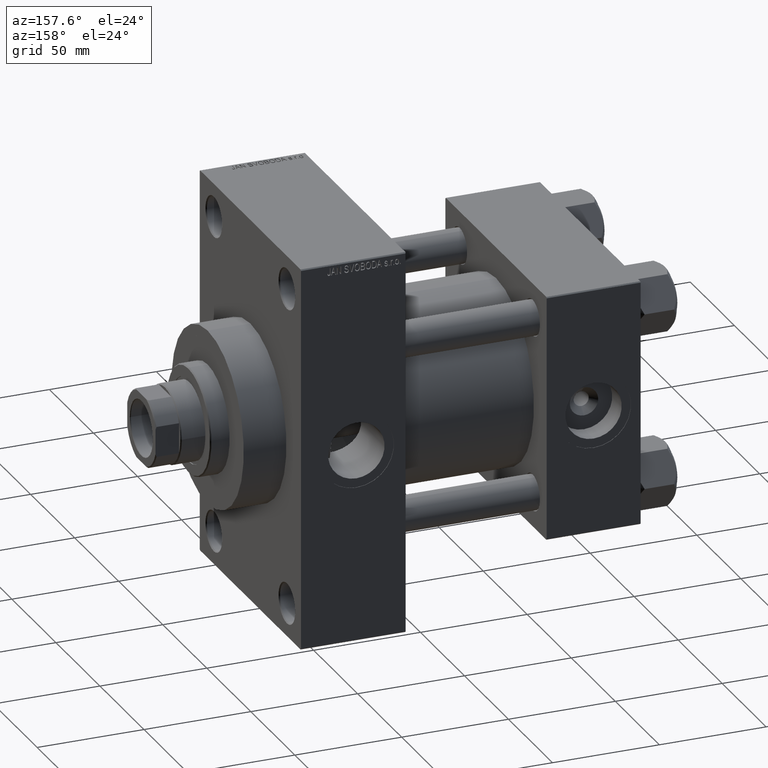
[diagram: clean part render]
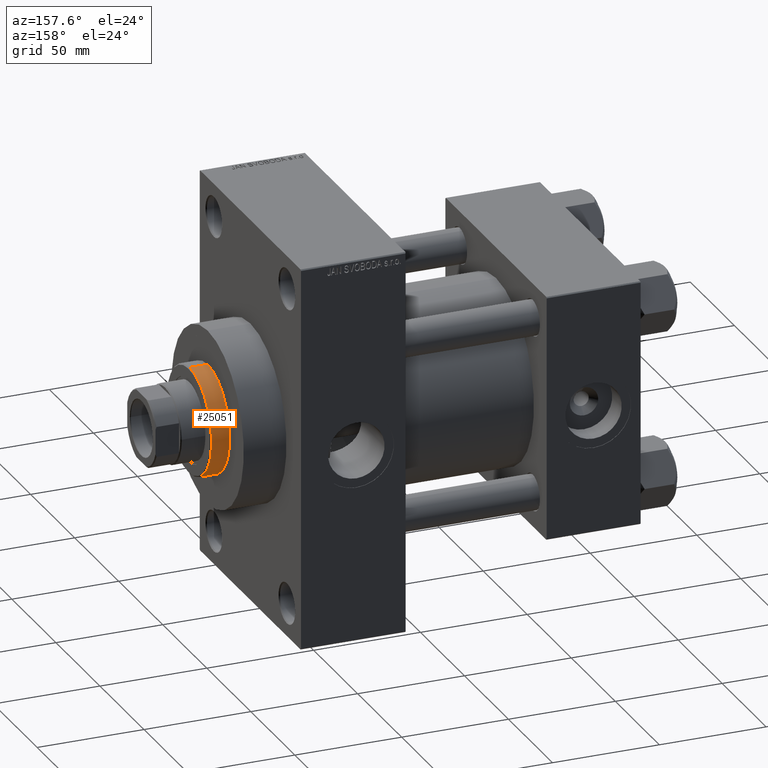
[diagram: same view with one face highlighted and labeled with its STEP entity id]
A machine part, auxiliary view. The second image highlights one B-rep face of the part: STEP entity #25051.
In plain terms, the highlighted cylindrical surface (partial cylindrical patch) has radius 25 mm, axis along (-1, 0, 0).
Its self-contained STEP definition (entity closure, byte-faithful):
#1794 = DIRECTION ( 'NONE',  ( 1.000000000000000000, 0.000000000000000000, 0.000000000000000000 ) ) ;
#3131 = ORIENTED_EDGE ( 'NONE', *, *, #28479, .T. ) ;
#3376 = VERTEX_POINT ( 'NONE', #43550 ) ;
#6030 = VERTEX_POINT ( 'NONE', #25152 ) ;
#8068 = CARTESIAN_POINT ( 'NONE',  ( 0.000000000000000000, 0.000000000000000000, 52.25999999999999801 ) ) ;
#10020 = EDGE_CURVE ( 'NONE', #48110, #3376, #16092, .T. ) ;
#10474 = CARTESIAN_POINT ( 'NONE',  ( 25.00000000000000000, 3.061616997868383043E-15, 43.25999999999999801 ) ) ;
#12567 = DIRECTION ( 'NONE',  ( -0.000000000000000000, -0.000000000000000000, -1.000000000000000000 ) ) ;
#13410 = CIRCLE ( 'NONE', #18220, 25.00000000000000000 ) ;
#16092 = LINE ( 'NONE', #40265, #37372 ) ;
#18220 = AXIS2_PLACEMENT_3D ( 'NONE', #36666, #48229, #44698 ) ;
#19400 = AXIS2_PLACEMENT_3D ( 'NONE', #8068, #34743, #31213 ) ;
#25051 = ADVANCED_FACE ( 'NONE', ( #46050 ), #42307, .T. ) ;
#25152 = CARTESIAN_POINT ( 'NONE',  ( 25.00000000000000000, 3.061616997868383043E-15, 51.75999999999996959 ) ) ;
#28406 = ORIENTED_EDGE ( 'NONE', *, *, #48237, .F. ) ;
#28479 = EDGE_CURVE ( 'NONE', #3376, #40626, #38034, .T. ) ;
#31213 = DIRECTION ( 'NONE',  ( -1.000000000000000000, 0.000000000000000000, 0.000000000000000000 ) ) ;
#32553 = LINE ( 'NONE', #40608, #44163 ) ;
#34743 = DIRECTION ( 'NONE',  ( -0.000000000000000000, -0.000000000000000000, -1.000000000000000000 ) ) ;
#34921 = ORIENTED_EDGE ( 'NONE', *, *, #39661, .T. ) ;
#36666 = CARTESIAN_POINT ( 'NONE',  ( 0.000000000000000000, 0.000000000000000000, 51.75999999999996959 ) ) ;
#37372 = VECTOR ( 'NONE', #12567, 1000.000000000000000 ) ;
#38034 = CIRCLE ( 'NONE', #48382, 25.00000000000000000 ) ;
#38105 = CARTESIAN_POINT ( 'NONE',  ( -25.00000000000000000, 0.000000000000000000, 51.75999999999996959 ) ) ;
#39661 = EDGE_CURVE ( 'NONE', #6030, #48110, #13410, .T. ) ;
#39677 = ORIENTED_EDGE ( 'NONE', *, *, #10020, .T. ) ;
#40265 = CARTESIAN_POINT ( 'NONE',  ( -25.00000000000000000, 0.000000000000000000, 52.25999999999999801 ) ) ;
#40608 = CARTESIAN_POINT ( 'NONE',  ( 25.00000000000000000, 3.061616997868383043E-15, 52.25999999999999801 ) ) ;
#40626 = VERTEX_POINT ( 'NONE', #10474 ) ;
#42307 = CYLINDRICAL_SURFACE ( 'NONE', #19400, 25.00000000000000000 ) ;
#43328 = DIRECTION ( 'NONE',  ( 0.000000000000000000, 0.000000000000000000, 1.000000000000000000 ) ) ;
#43550 = CARTESIAN_POINT ( 'NONE',  ( -25.00000000000000000, 0.000000000000000000, 43.25999999999999801 ) ) ;
#44163 = VECTOR ( 'NONE', #48644, 1000.000000000000000 ) ;
#44197 = EDGE_LOOP ( 'NONE', ( #28406, #34921, #39677, #3131 ) ) ;
#44698 = DIRECTION ( 'NONE',  ( 1.000000000000000000, 0.000000000000000000, 0.000000000000000000 ) ) ;
#46050 = FACE_OUTER_BOUND ( 'NONE', #44197, .T. ) ;
#47849 = CARTESIAN_POINT ( 'NONE',  ( 0.000000000000000000, 0.000000000000000000, 43.25999999999999801 ) ) ;
#48110 = VERTEX_POINT ( 'NONE', #38105 ) ;
#48229 = DIRECTION ( 'NONE',  ( 0.000000000000000000, 0.000000000000000000, -1.000000000000000000 ) ) ;
#48237 = EDGE_CURVE ( 'NONE', #6030, #40626, #32553, .T. ) ;
#48382 = AXIS2_PLACEMENT_3D ( 'NONE', #47849, #43328, #1794 ) ;
#48644 = DIRECTION ( 'NONE',  ( -0.000000000000000000, -0.000000000000000000, -1.000000000000000000 ) ) ;